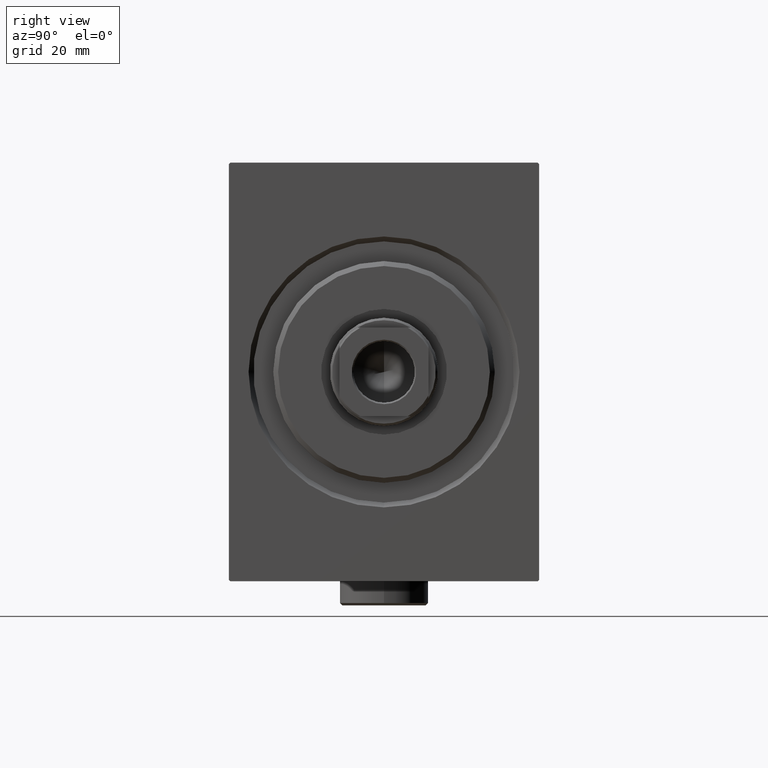
[diagram: clean part render]
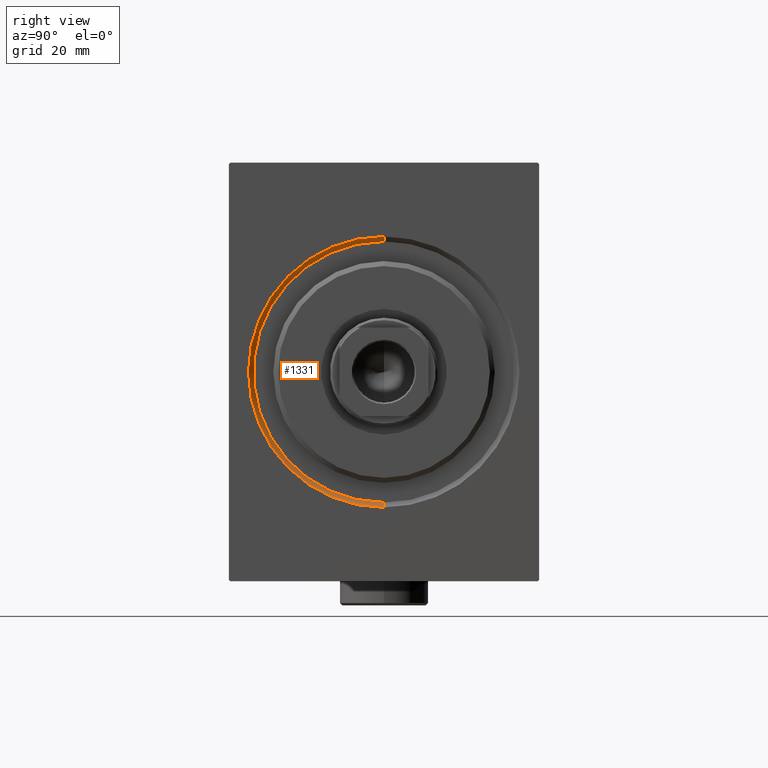
[diagram: same view with one face highlighted and labeled with its STEP entity id]
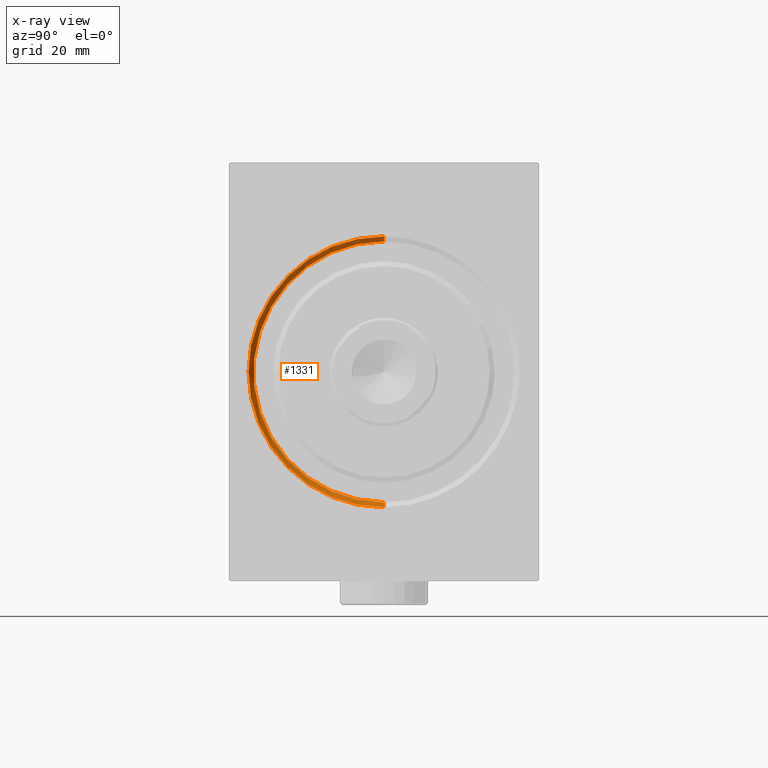
[diagram: x-ray of the same camera — body ghosted, the highlighted face saturated]
A machine part, right view. The second image highlights one B-rep face of the part: STEP entity #1331.
The next image is the same camera in x-ray: the body ghosted, the highlighted face saturated — about 0% of this face is hidden behind the body in this view.
In plain terms, the highlighted conical surface has half-angle 45 deg.
Its self-contained STEP definition (entity closure, byte-faithful):
#88 = EDGE_CURVE ( 'NONE', #22052, #33789, #17709, .T. ) ;
#709 = EDGE_LOOP ( 'NONE', ( #14048, #10488, #21670, #29785 ) ) ;
#1140 = LINE ( 'NONE', #14736, #32041 ) ;
#1331 = ADVANCED_FACE ( 'NONE', ( #23027 ), #22025, .F. ) ;
#2914 = LINE ( 'NONE', #8955, #23530 ) ;
#3252 = VERTEX_POINT ( 'NONE', #16242 ) ;
#4253 = EDGE_CURVE ( 'NONE', #22052, #3252, #1140, .T. ) ;
#5132 = DIRECTION ( 'NONE',  ( -0.7071067811865401342, 0.000000000000000000, 0.7071067811865549002 ) ) ;
#6024 = DIRECTION ( 'NONE',  ( 0.000000000000000000, 0.000000000000000000, -1.000000000000000000 ) ) ;
#8955 = CARTESIAN_POINT ( 'NONE',  ( 0.9999999999999731326, 3.245314017740486554E-15, -26.50000000000000355 ) ) ;
#9324 = VERTEX_POINT ( 'NONE', #14554 ) ;
#10429 = EDGE_CURVE ( 'NONE', #33789, #9324, #2914, .T. ) ;
#10488 = ORIENTED_EDGE ( 'NONE', *, *, #88, .F. ) ;
#13146 = CARTESIAN_POINT ( 'NONE',  ( 0.9999999999999731326, 0.000000000000000000, 0.000000000000000000 ) ) ;
#14048 = ORIENTED_EDGE ( 'NONE', *, *, #10429, .F. ) ;
#14554 = CARTESIAN_POINT ( 'NONE',  ( 0.000000000000000000, 3.367778697655221307E-15, -27.49999999999999645 ) ) ;
#14736 = CARTESIAN_POINT ( 'NONE',  ( 0.9999999999999731326, 0.000000000000000000, 26.50000000000000355 ) ) ;
#16242 = CARTESIAN_POINT ( 'NONE',  ( 0.000000000000000000, 0.000000000000000000, 27.49999999999999645 ) ) ;
#16518 = DIRECTION ( 'NONE',  ( -0.7071067811865401342, 8.659560562355022838E-17, -0.7071067811865549002 ) ) ;
#17709 = CIRCLE ( 'NONE', #24120, 26.50000000000000355 ) ;
#21670 = ORIENTED_EDGE ( 'NONE', *, *, #4253, .T. ) ;
#22025 = CONICAL_SURFACE ( 'NONE', #34803, 26.50000000000000355, 0.7853981633974587151 ) ;
#22052 = VERTEX_POINT ( 'NONE', #25254 ) ;
#22567 = CARTESIAN_POINT ( 'NONE',  ( 0.000000000000000000, 0.000000000000000000, 0.000000000000000000 ) ) ;
#23027 = FACE_OUTER_BOUND ( 'NONE', #709, .T. ) ;
#23082 = CIRCLE ( 'NONE', #32343, 27.49999999999999645 ) ;
#23530 = VECTOR ( 'NONE', #16518, 1000.000000000000000 ) ;
#23958 = EDGE_CURVE ( 'NONE', #9324, #3252, #23082, .T. ) ;
#24120 = AXIS2_PLACEMENT_3D ( 'NONE', #13146, #33405, #6024 ) ;
#25254 = CARTESIAN_POINT ( 'NONE',  ( 0.9999999999999731326, 0.000000000000000000, 26.50000000000000355 ) ) ;
#29785 = ORIENTED_EDGE ( 'NONE', *, *, #23958, .F. ) ;
#32041 = VECTOR ( 'NONE', #5132, 1000.000000000000000 ) ;
#32343 = AXIS2_PLACEMENT_3D ( 'NONE', #22567, #32588, #43481 ) ;
#32588 = DIRECTION ( 'NONE',  ( 1.000000000000000000, 0.000000000000000000, 0.000000000000000000 ) ) ;
#33405 = DIRECTION ( 'NONE',  ( -1.000000000000000000, 0.000000000000000000, 0.000000000000000000 ) ) ;
#33789 = VERTEX_POINT ( 'NONE', #40681 ) ;
#34803 = AXIS2_PLACEMENT_3D ( 'NONE', #40168, #36605, #43066 ) ;
#36605 = DIRECTION ( 'NONE',  ( -1.000000000000000000, 0.000000000000000000, 0.000000000000000000 ) ) ;
#40168 = CARTESIAN_POINT ( 'NONE',  ( 0.9999999999999731326, 0.000000000000000000, 0.000000000000000000 ) ) ;
#40681 = CARTESIAN_POINT ( 'NONE',  ( 0.9999999999999731326, 3.245314017740486554E-15, -26.50000000000000355 ) ) ;
#43066 = DIRECTION ( 'NONE',  ( 0.000000000000000000, 0.000000000000000000, 1.000000000000000000 ) ) ;
#43481 = DIRECTION ( 'NONE',  ( 0.000000000000000000, 0.000000000000000000, -1.000000000000000000 ) ) ;